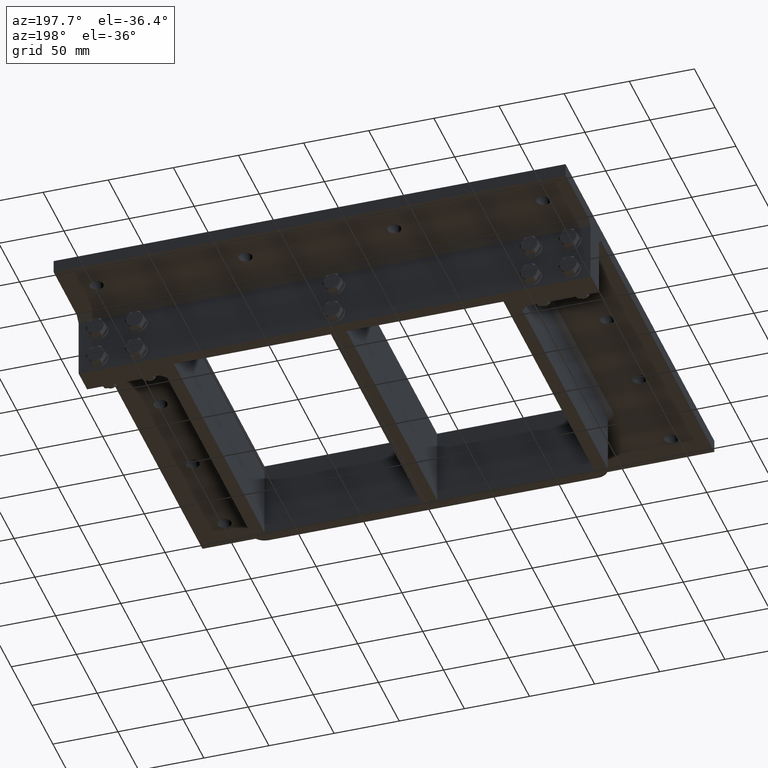
[diagram: clean part render]
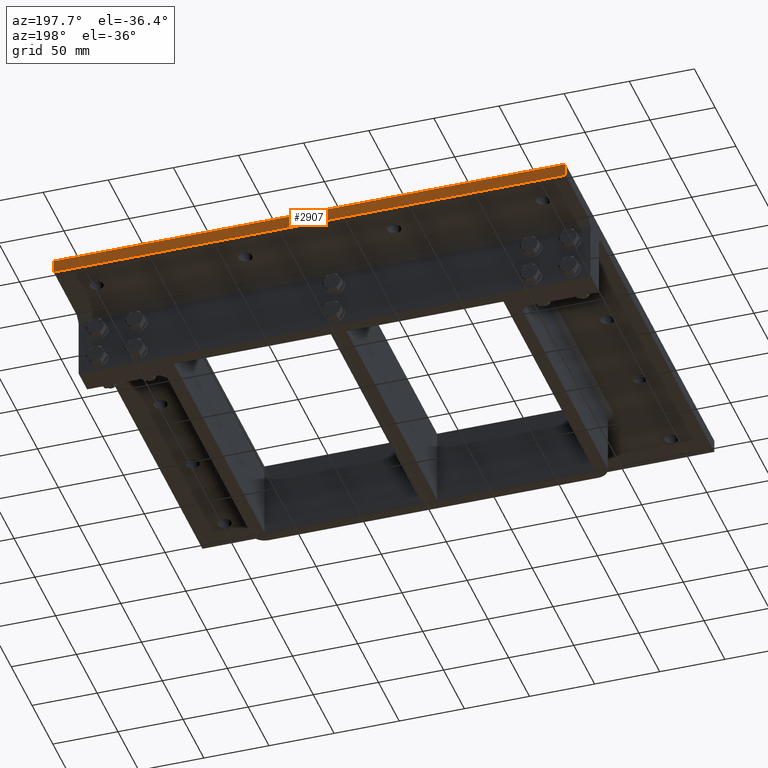
[diagram: same view with one face highlighted and labeled with its STEP entity id]
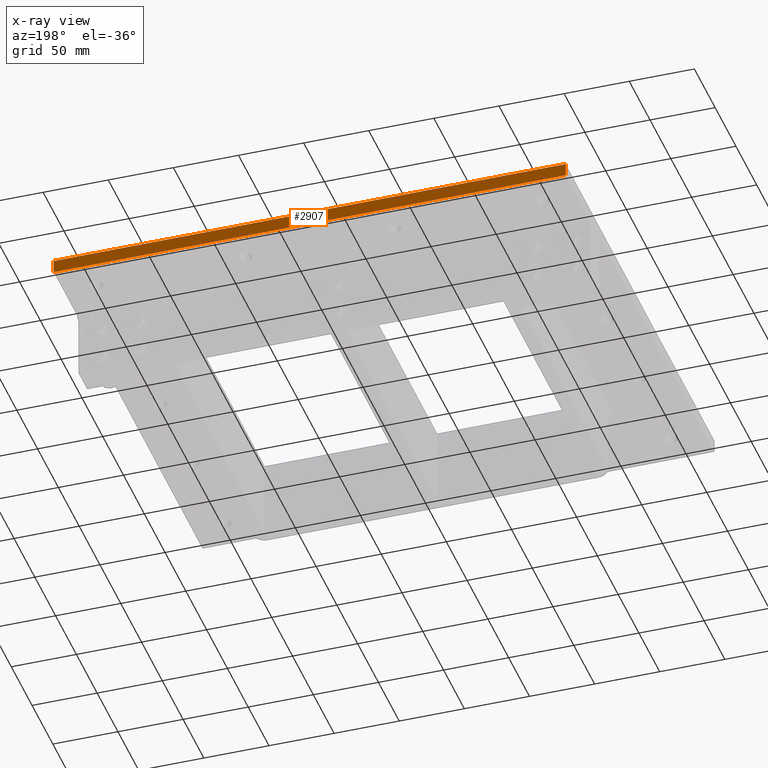
[diagram: x-ray of the same camera — body ghosted, the highlighted face saturated]
A machine part, auxiliary view. The second image highlights one B-rep face of the part: STEP entity #2907.
The next image is the same camera in x-ray: the body ghosted, the highlighted face saturated — about 0% of this face is hidden behind the body in this view.
In plain terms, the highlighted planar face has unit normal (-0, 1, 0).
Its self-contained STEP definition (entity closure, byte-faithful):
#544=FACE_OUTER_BOUND('',#761,.T.);
#761=EDGE_LOOP('',(#2367,#2368,#2369,#2370));
#1001=LINE('',#4772,#1224);
#1005=LINE('',#4787,#1228);
#1009=LINE('',#4794,#1232);
#1010=LINE('',#4804,#1233);
#1224=VECTOR('',#3919,10.);
#1228=VECTOR('',#3933,10.);
#1232=VECTOR('',#3939,10.);
#1233=VECTOR('',#3950,10.);
#1451=VERTEX_POINT('',#4769);
#1452=VERTEX_POINT('',#4771);
#1458=VERTEX_POINT('',#4785);
#1460=VERTEX_POINT('',#4792);
#1764=EDGE_CURVE('',#1451,#1452,#1001,.T.);
#1772=EDGE_CURVE('',#1451,#1458,#1005,.T.);
#1776=EDGE_CURVE('',#1460,#1458,#1009,.T.);
#1781=EDGE_CURVE('',#1452,#1460,#1010,.T.);
#2367=ORIENTED_EDGE('',*,*,#1764,.F.);
#2368=ORIENTED_EDGE('',*,*,#1772,.T.);
#2369=ORIENTED_EDGE('',*,*,#1776,.F.);
#2370=ORIENTED_EDGE('',*,*,#1781,.F.);
#2781=PLANE('',#3359);
#2907=ADVANCED_FACE('',(#544),#2781,.T.);
#3359=AXIS2_PLACEMENT_3D('',#4818,#3968,#3969);
#3919=DIRECTION('',(-1.,-9.0399839155229E-17,0.));
#3933=DIRECTION('',(0.,0.,-1.));
#3939=DIRECTION('',(1.,9.0399839155229E-17,0.));
#3950=DIRECTION('',(0.,0.,-1.));
#3968=DIRECTION('center_axis',(-9.0399839155229E-17,1.,0.));
#3969=DIRECTION('ref_axis',(1.,9.0399839155229E-17,0.));
#4769=CARTESIAN_POINT('',(196.5,179.,0.));
#4771=CARTESIAN_POINT('',(-196.5,179.,0.));
#4772=CARTESIAN_POINT('',(196.5,179.,0.));
#4785=CARTESIAN_POINT('',(196.5,179.,-10.));
#4787=CARTESIAN_POINT('',(196.5,179.,0.));
#4792=CARTESIAN_POINT('',(-196.5,179.,-10.));
#4794=CARTESIAN_POINT('',(196.5,179.,-10.));
#4804=CARTESIAN_POINT('',(-196.5,179.,0.));
#4818=CARTESIAN_POINT('Origin',(-196.5,179.,0.));